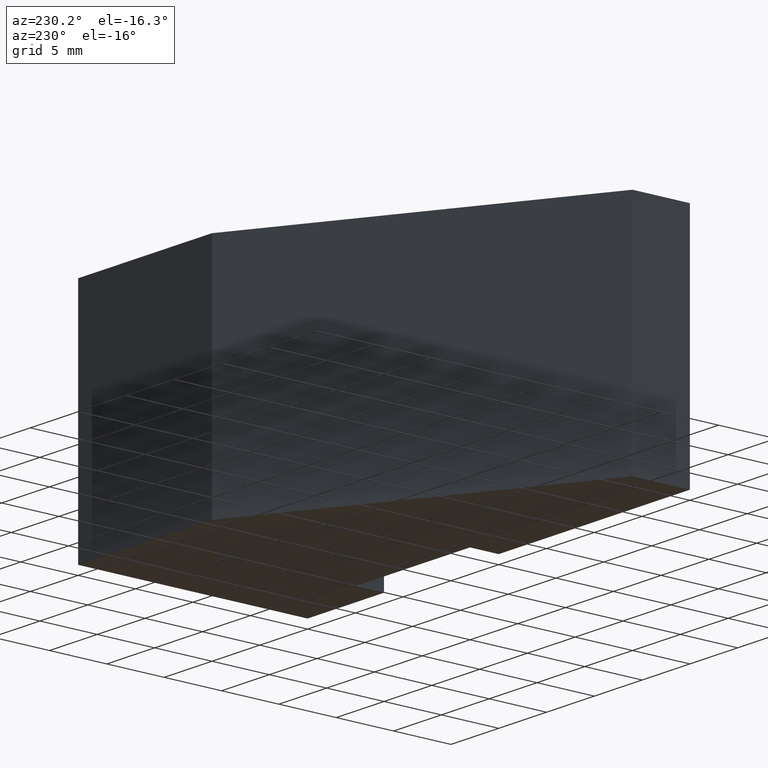
[diagram: clean part render]
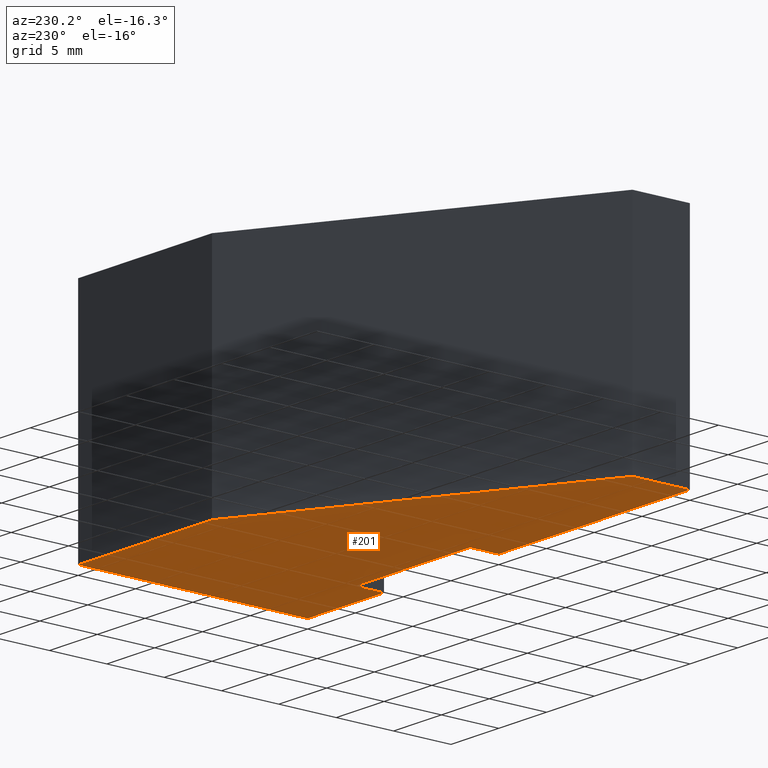
[diagram: same view with one face highlighted and labeled with its STEP entity id]
A machine part, auxiliary view. The second image highlights one B-rep face of the part: STEP entity #201.
In plain terms, the highlighted planar face has unit normal (0, 0, 1).
Its self-contained STEP definition (entity closure, byte-faithful):
#15=FACE_OUTER_BOUND('',#26,.T.);
#26=EDGE_LOOP('',(#136,#137,#138,#139,#140,#141,#142,#143,#144));
#37=LINE('',#301,#64);
#38=LINE('',#303,#65);
#39=LINE('',#305,#66);
#40=LINE('',#307,#67);
#41=LINE('',#309,#68);
#42=LINE('',#311,#69);
#43=LINE('',#313,#70);
#44=LINE('',#315,#71);
#45=LINE('',#316,#72);
#64=VECTOR('',#250,10.);
#65=VECTOR('',#251,10.);
#66=VECTOR('',#252,10.);
#67=VECTOR('',#253,10.);
#68=VECTOR('',#254,10.);
#69=VECTOR('',#255,10.);
#70=VECTOR('',#256,10.);
#71=VECTOR('',#257,10.);
#72=VECTOR('',#258,10.);
#91=VERTEX_POINT('',#299);
#92=VERTEX_POINT('',#300);
#93=VERTEX_POINT('',#302);
#94=VERTEX_POINT('',#304);
#95=VERTEX_POINT('',#306);
#96=VERTEX_POINT('',#308);
#97=VERTEX_POINT('',#310);
#98=VERTEX_POINT('',#312);
#99=VERTEX_POINT('',#314);
#109=EDGE_CURVE('',#91,#92,#37,.T.);
#110=EDGE_CURVE('',#93,#91,#38,.T.);
#111=EDGE_CURVE('',#94,#93,#39,.T.);
#112=EDGE_CURVE('',#95,#94,#40,.T.);
#113=EDGE_CURVE('',#96,#95,#41,.T.);
#114=EDGE_CURVE('',#97,#96,#42,.T.);
#115=EDGE_CURVE('',#98,#97,#43,.T.);
#116=EDGE_CURVE('',#99,#98,#44,.T.);
#117=EDGE_CURVE('',#92,#99,#45,.T.);
#136=ORIENTED_EDGE('',*,*,#109,.F.);
#137=ORIENTED_EDGE('',*,*,#110,.F.);
#138=ORIENTED_EDGE('',*,*,#111,.F.);
#139=ORIENTED_EDGE('',*,*,#112,.F.);
#140=ORIENTED_EDGE('',*,*,#113,.F.);
#141=ORIENTED_EDGE('',*,*,#114,.F.);
#142=ORIENTED_EDGE('',*,*,#115,.F.);
#143=ORIENTED_EDGE('',*,*,#116,.F.);
#144=ORIENTED_EDGE('',*,*,#117,.F.);
#190=PLANE('',#235);
#201=ADVANCED_FACE('',(#15),#190,.F.);
#235=AXIS2_PLACEMENT_3D('',#298,#248,#249);
#248=DIRECTION('center_axis',(0.,0.,1.));
#249=DIRECTION('ref_axis',(1.,0.,0.));
#250=DIRECTION('',(-3.085971153719E-16,1.,0.));
#251=DIRECTION('',(1.,3.46944695195361E-17,0.));
#252=DIRECTION('',(0.,-1.,0.));
#253=DIRECTION('',(1.,3.70074341541719E-16,0.));
#254=DIRECTION('',(0.,1.,0.));
#255=DIRECTION('',(1.,3.67394039744206E-16,0.));
#256=DIRECTION('',(8.88178419700125E-16,-1.,0.));
#257=DIRECTION('',(-0.866185586048601,-0.499722453489577,0.));
#258=DIRECTION('',(-1.,-4.75809867696496E-16,0.));
#298=CARTESIAN_POINT('Origin',(-17.3522872857137,7.92829977061662,-10.));
#299=CARTESIAN_POINT('',(3.67394050203139E-15,0.,-10.));
#300=CARTESIAN_POINT('',(-2.4980018054066E-15,20.,-10.));
#301=CARTESIAN_POINT('',(-2.4980018054066E-15,20.,-10.));
#302=CARTESIAN_POINT('',(-8.,-2.77555756156289E-16,-10.));
#303=CARTESIAN_POINT('',(3.67394050203139E-15,0.,-10.));
#304=CARTESIAN_POINT('',(-8.,2.5,-10.));
#305=CARTESIAN_POINT('',(-8.,-2.77555756156289E-16,-10.));
#306=CARTESIAN_POINT('',(-20.,2.5,-10.));
#307=CARTESIAN_POINT('',(-8.,2.5,-10.));
#308=CARTESIAN_POINT('',(-20.,5.74670060565057E-15,-10.));
#309=CARTESIAN_POINT('',(-20.,2.5,-10.));
#310=CARTESIAN_POINT('',(-40.,-1.60118018923355E-15,-10.));
#311=CARTESIAN_POINT('',(-20.,5.74670060565057E-15,-10.));
#312=CARTESIAN_POINT('',(-40.,5.,-10.));
#313=CARTESIAN_POINT('',(-40.,-1.60118018923355E-15,-10.));
#314=CARTESIAN_POINT('',(-14.,20.,-10.));
#315=CARTESIAN_POINT('',(-40.,5.,-10.));
#316=CARTESIAN_POINT('',(-14.,20.,-10.));